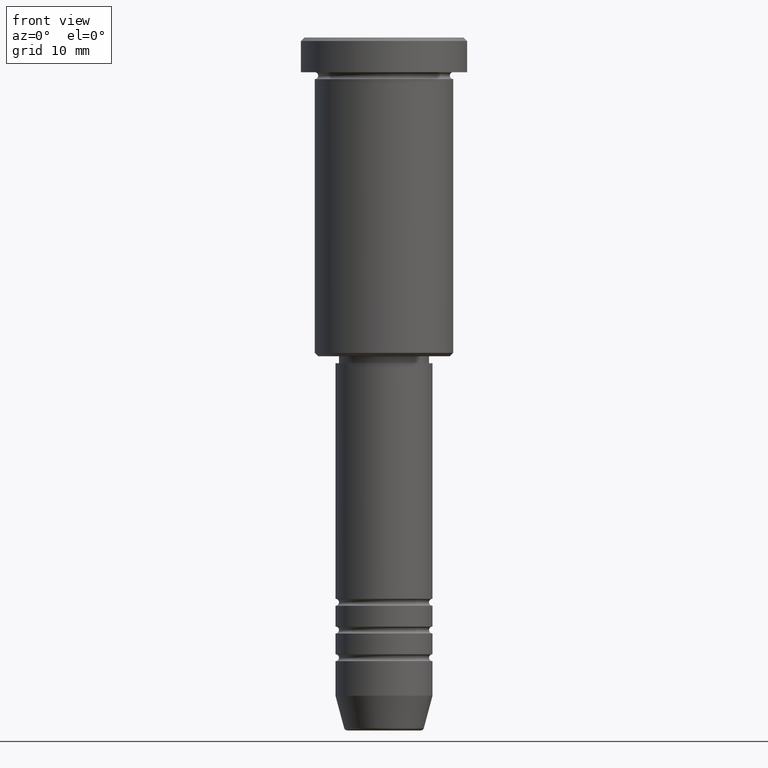
[diagram: clean part render]
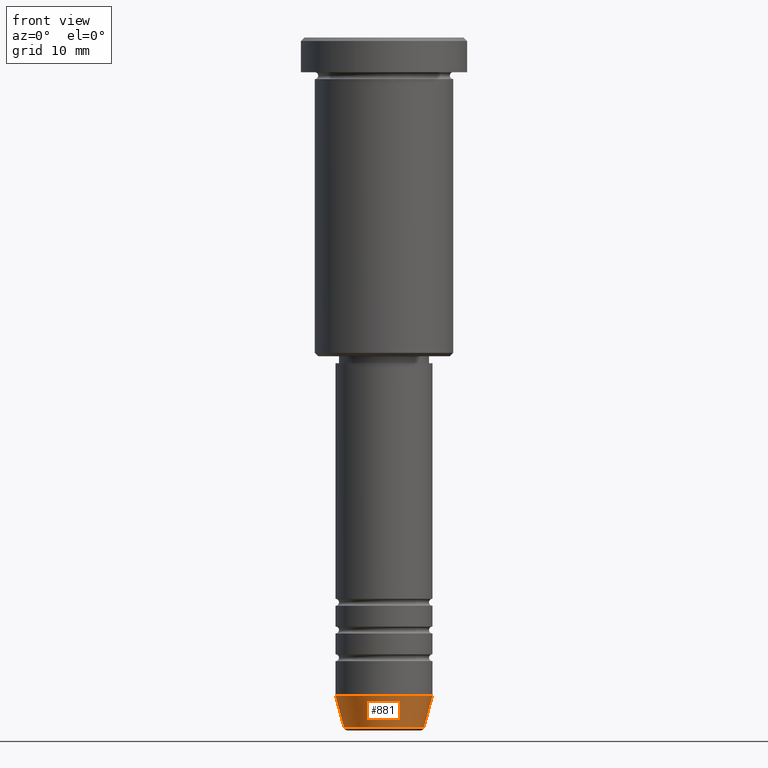
[diagram: same view with one face highlighted and labeled with its STEP entity id]
A machine part, front view. The second image highlights one B-rep face of the part: STEP entity #881.
In plain terms, the highlighted conical surface has half-angle 15 deg.
Its self-contained STEP definition (entity closure, byte-faithful):
#66 = DIRECTION ( 'NONE',  ( 1.000000000000000000, 0.000000000000000000, 0.000000000000000000 ) ) ;
#73 = CARTESIAN_POINT ( 'NONE',  ( 7.000000000000000888, 0.000000000000000000, -95.00000000000000000 ) ) ;
#108 = DIRECTION ( 'NONE',  ( 0.2588190451025213501, 0.000000000000000000, 0.9659258262890680902 ) ) ;
#128 = ORIENTED_EDGE ( 'NONE', *, *, #388, .T. ) ;
#155 = FACE_OUTER_BOUND ( 'NONE', #1082, .T. ) ;
#191 = CIRCLE ( 'NONE', #1123, 5.759553456999433330 ) ;
#235 = CARTESIAN_POINT ( 'NONE',  ( 0.000000000000000000, 0.000000000000000000, -95.00000000000000000 ) ) ;
#248 = CARTESIAN_POINT ( 'NONE',  ( -5.759553456999433330, 7.812973149831950787E-16, -99.62940952255127058 ) ) ;
#301 = VERTEX_POINT ( 'NONE', #508 ) ;
#317 = AXIS2_PLACEMENT_3D ( 'NONE', #404, #680, #784 ) ;
#322 = ORIENTED_EDGE ( 'NONE', *, *, #1099, .F. ) ;
#349 = DIRECTION ( 'NONE',  ( -0.000000000000000000, -0.000000000000000000, 1.000000000000000000 ) ) ;
#368 = VECTOR ( 'NONE', #917, 1000.000000000000000 ) ;
#379 = CARTESIAN_POINT ( 'NONE',  ( 7.000000000000000888, 0.000000000000000000, -95.00000000000000000 ) ) ;
#388 = EDGE_CURVE ( 'NONE', #1022, #301, #191, .T. ) ;
#404 = CARTESIAN_POINT ( 'NONE',  ( 0.000000000000000000, 0.000000000000000000, -95.00000000000000000 ) ) ;
#508 = CARTESIAN_POINT ( 'NONE',  ( 5.759553456999433330, 0.000000000000000000, -99.62940952255127058 ) ) ;
#553 = DIRECTION ( 'NONE',  ( 1.000000000000000000, 0.000000000000000000, 0.000000000000000000 ) ) ;
#645 = CONICAL_SURFACE ( 'NONE', #991, 7.000000000000000888, 0.2617993877991500740 ) ;
#680 = DIRECTION ( 'NONE',  ( -0.000000000000000000, -0.000000000000000000, 1.000000000000000000 ) ) ;
#732 = DIRECTION ( 'NONE',  ( -0.000000000000000000, -0.000000000000000000, 1.000000000000000000 ) ) ;
#755 = VERTEX_POINT ( 'NONE', #972 ) ;
#766 = ORIENTED_EDGE ( 'NONE', *, *, #852, .F. ) ;
#784 = DIRECTION ( 'NONE',  ( 1.000000000000000000, 0.000000000000000000, 0.000000000000000000 ) ) ;
#836 = LINE ( 'NONE', #379, #1156 ) ;
#852 = EDGE_CURVE ( 'NONE', #755, #1049, #858, .T. ) ;
#858 = CIRCLE ( 'NONE', #317, 7.000000000000000888 ) ;
#881 = ADVANCED_FACE ( 'NONE', ( #155 ), #645, .T. ) ;
#907 = CARTESIAN_POINT ( 'NONE',  ( -7.000000000000000888, 8.572527594031474176E-16, -95.00000000000000000 ) ) ;
#917 = DIRECTION ( 'NONE',  ( -0.2588190451025213501, 3.169619151431772337E-17, 0.9659258262890680902 ) ) ;
#972 = CARTESIAN_POINT ( 'NONE',  ( -7.000000000000000888, 8.572527594031474176E-16, -95.00000000000000000 ) ) ;
#991 = AXIS2_PLACEMENT_3D ( 'NONE', #235, #349, #66 ) ;
#993 = CARTESIAN_POINT ( 'NONE',  ( 0.000000000000000000, 0.000000000000000000, -99.62940952255127058 ) ) ;
#1001 = LINE ( 'NONE', #907, #368 ) ;
#1022 = VERTEX_POINT ( 'NONE', #248 ) ;
#1049 = VERTEX_POINT ( 'NONE', #73 ) ;
#1082 = EDGE_LOOP ( 'NONE', ( #322, #128, #1144, #766 ) ) ;
#1099 = EDGE_CURVE ( 'NONE', #1022, #755, #1001, .T. ) ;
#1123 = AXIS2_PLACEMENT_3D ( 'NONE', #993, #732, #553 ) ;
#1144 = ORIENTED_EDGE ( 'NONE', *, *, #1165, .T. ) ;
#1156 = VECTOR ( 'NONE', #108, 1000.000000000000000 ) ;
#1165 = EDGE_CURVE ( 'NONE', #301, #1049, #836, .T. ) ;